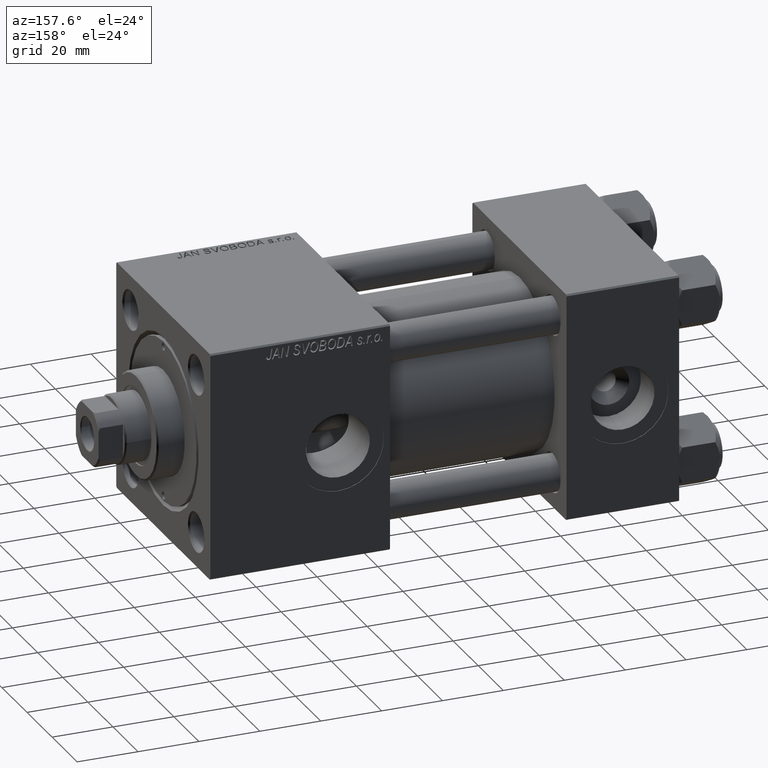
[diagram: clean part render]
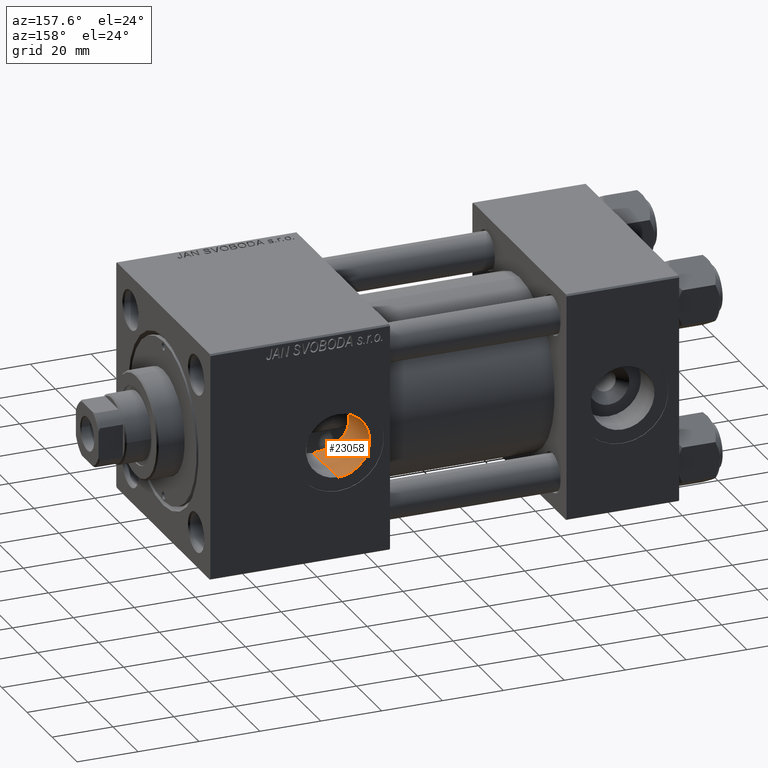
[diagram: same view with one face highlighted and labeled with its STEP entity id]
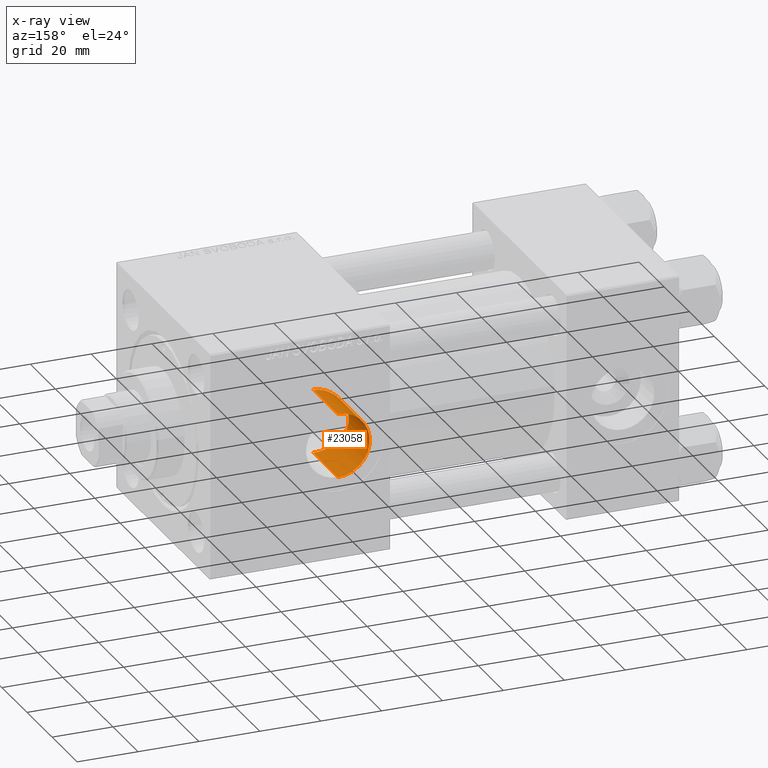
[diagram: x-ray of the same camera — body ghosted, the highlighted face saturated]
A machine part, auxiliary view. The second image highlights one B-rep face of the part: STEP entity #23058.
The next image is the same camera in x-ray: the body ghosted, the highlighted face saturated — about 0% of this face is hidden behind the body in this view.
In plain terms, the highlighted cylindrical surface (edge-blend (fillet) strip) has radius 10.48 mm, axis along (0, 1, 0).
Its self-contained STEP definition (entity closure, byte-faithful):
#847 = CARTESIAN_POINT ( 'NONE',  ( 101.6055836921181736, 20.45635861796915478, 1.381700106035497422 ) ) ;
#1101 = CARTESIAN_POINT ( 'NONE',  ( 108.5742545404236523, 17.93825126373310752, 9.927655132419886286 ) ) ;
#1584 = DIRECTION ( 'NONE',  ( -0.000000000000000000, 1.000000000000000000, -0.000000000000000000 ) ) ;
#2121 = ORIENTED_EDGE ( 'NONE', *, *, #31659, .F. ) ;
#2296 = CIRCLE ( 'NONE', #29098, 10.48000000000000043 ) ;
#2851 = EDGE_CURVE ( 'NONE', #4493, #47593, #47347, .T. ) ;
#4428 = CARTESIAN_POINT ( 'NONE',  ( 106.7106607938319485, 18.38789166138563047, 9.072389502815479290 ) ) ;
#4493 = VERTEX_POINT ( 'NONE', #46628 ) ;
#4663 = CARTESIAN_POINT ( 'NONE',  ( 106.7142621541631655, 18.38683988840735850, -9.074526565632755393 ) ) ;
#4912 = CARTESIAN_POINT ( 'NONE',  ( 102.6159976981734445, 19.96142404198110043, -4.678403179177069049 ) ) ;
#5162 = CARTESIAN_POINT ( 'NONE',  ( 112.0000000000000142, 17.61872867150180966, 10.48000000000000043 ) ) ;
#5399 = LINE ( 'NONE', #20935, #36522 ) ;
#5958 = DIRECTION ( 'NONE',  ( -0.000000000000000000, 1.000000000000000000, -0.000000000000000000 ) ) ;
#6362 = DIRECTION ( 'NONE',  ( 0.000000000000000000, 0.000000000000000000, 1.000000000000000000 ) ) ;
#6857 = VERTEX_POINT ( 'NONE', #29451 ) ;
#7972 = CARTESIAN_POINT ( 'NONE',  ( 110.2468534338128734, 17.70251751164530418, 10.33814712602720576 ) ) ;
#8158 = DIRECTION ( 'NONE',  ( -0.000000000000000000, 1.000000000000000000, -0.000000000000000000 ) ) ;
#8236 = CARTESIAN_POINT ( 'NONE',  ( 102.0732622662075784, 20.22142946436213862, -3.428524798860914213 ) ) ;
#8495 = CARTESIAN_POINT ( 'NONE',  ( 101.5365425422142494, 20.49152652918501261, 0.6848675738318643624 ) ) ;
#8729 = CARTESIAN_POINT ( 'NONE',  ( 104.1270451318824257, 19.29675496503547194, 6.925428365915356821 ) ) ;
#8977 = CARTESIAN_POINT ( 'NONE',  ( 111.2952851733683275, 17.62935847065589812, 10.46218947295187185 ) ) ;
#10537 = AXIS2_PLACEMENT_3D ( 'NONE', #48700, #5958, #28869 ) ;
#11337 = VECTOR ( 'NONE', #8158, 1000.000000000000000 ) ;
#11789 = CARTESIAN_POINT ( 'NONE',  ( 101.5203413114016655, 20.49982551501179628, -0.3573665441489103922 ) ) ;
#12039 = CARTESIAN_POINT ( 'NONE',  ( 110.5978533062423708, 17.66157575871127605, -10.40884182910763478 ) ) ;
#12298 = CARTESIAN_POINT ( 'NONE',  ( 107.3100863107396066, 18.22170801969769727, -9.397387316683852632 ) ) ;
#12549 = CARTESIAN_POINT ( 'NONE',  ( 107.3183937461305106, 18.21983983363420379, 9.400884600174675754 ) ) ;
#13316 = CARTESIAN_POINT ( 'NONE',  ( 112.0000000000000000, 37.30000000000000426, 10.48000000000000043 ) ) ;
#13730 = CARTESIAN_POINT ( 'NONE',  ( 112.0000000000000000, 37.30000000000000426, 0.000000000000000000 ) ) ;
#15370 = ORIENTED_EDGE ( 'NONE', *, *, #15664, .T. ) ;
#15664 = EDGE_CURVE ( 'NONE', #47593, #27782, #2296, .T. ) ;
#16364 = CARTESIAN_POINT ( 'NONE',  ( 102.6164643899289786, 19.96120364297752658, 4.679357298666303677 ) ) ;
#16614 = CARTESIAN_POINT ( 'NONE',  ( 102.0672445904021544, 20.22435857088710165, 3.412665908255118286 ) ) ;
#17812 = DIRECTION ( 'NONE',  ( 0.000000000000000000, 1.000000000000000000, 0.000000000000000000 ) ) ;
#19954 = CARTESIAN_POINT ( 'NONE',  ( 102.4668488264915567, 20.03214750572677261, 4.366727419945055644 ) ) ;
#20194 = CARTESIAN_POINT ( 'NONE',  ( 103.1187049359718202, 19.72987673710759537, -5.573899943951358793 ) ) ;
#20935 = CARTESIAN_POINT ( 'NONE',  ( 112.0000000000000000, -29.64191626734007912, 10.48000000000000043 ) ) ;
#23058 = ADVANCED_FACE ( 'NONE', ( #25048 ), #29617, .F. ) ;
#23125 = EDGE_CURVE ( 'NONE', #6857, #27782, #5399, .T. ) ;
#23507 = CARTESIAN_POINT ( 'NONE',  ( 101.5378897624987928, 20.49083823246028047, -0.7039849273505848215 ) ) ;
#23769 = CARTESIAN_POINT ( 'NONE',  ( 104.3565930781032733, 19.20397725512305342, 7.177934301078940038 ) ) ;
#24017 = CARTESIAN_POINT ( 'NONE',  ( 109.2403629802350196, 17.82079794539907525, -10.13382489948089038 ) ) ;
#24253 = CARTESIAN_POINT ( 'NONE',  ( 101.5196685255906885, 20.50016945612666319, 0.3370597319416051008 ) ) ;
#24330 = CARTESIAN_POINT ( 'NONE',  ( 112.0000000000000000, 37.30000000000000426, -10.48000000000000043 ) ) ;
#24509 = CARTESIAN_POINT ( 'NONE',  ( 103.1169022577859806, 19.73069551859685333, 5.570939784232588288 ) ) ;
#25048 = FACE_OUTER_BOUND ( 'NONE', #29556, .T. ) ;
#27312 = CARTESIAN_POINT ( 'NONE',  ( 105.5912950391798688, 18.74056962282067929, 8.319486838373059356 ) ) ;
#27782 = VERTEX_POINT ( 'NONE', #13316 ) ;
#27826 = CARTESIAN_POINT ( 'NONE',  ( 104.1154966428195650, 19.29748815725751854, -6.936615267079071501 ) ) ;
#28074 = CARTESIAN_POINT ( 'NONE',  ( 109.2268287562162783, 17.82285308859523454, 10.13022984834618434 ) ) ;
#28310 = CARTESIAN_POINT ( 'NONE',  ( 101.6580920811483111, 20.42966293947405987, 1.731009894797393089 ) ) ;
#28869 = DIRECTION ( 'NONE',  ( 0.000000000000000000, 0.000000000000000000, 1.000000000000000000 ) ) ;
#29098 = AXIS2_PLACEMENT_3D ( 'NONE', #13730, #17812, #6362 ) ;
#29451 = CARTESIAN_POINT ( 'NONE',  ( 112.0000000000000142, 17.61872867150180966, 10.48000000000000043 ) ) ;
#29556 = EDGE_LOOP ( 'NONE', ( #2121, #39340, #15370, #34986 ) ) ;
#29617 = CYLINDRICAL_SURFACE ( 'NONE', #10537, 10.48000000000000043 ) ;
#31659 = EDGE_CURVE ( 'NONE', #4493, #6857, #49508, .T. ) ;
#31887 = CARTESIAN_POINT ( 'NONE',  ( 102.9411611326308389, 19.81064037218146368, 5.280583646633655981 ) ) ;
#32127 = CARTESIAN_POINT ( 'NONE',  ( 112.0000000000000000, 17.61872867150181321, -10.48000000000000043 ) ) ;
#34986 = ORIENTED_EDGE ( 'NONE', *, *, #23125, .F. ) ;
#35193 = CARTESIAN_POINT ( 'NONE',  ( 108.5822330272395391, 17.93645683579941164, -9.931014435212070168 ) ) ;
#35443 = CARTESIAN_POINT ( 'NONE',  ( 102.4690137959665606, 20.03112378046086306, -4.371135786211568508 ) ) ;
#35687 = CARTESIAN_POINT ( 'NONE',  ( 105.5937765529685208, 18.73970531679492524, -8.321439665826497745 ) ) ;
#35935 = CARTESIAN_POINT ( 'NONE',  ( 103.6965545704568967, 19.47635848475286835, 6.402950132980990361 ) ) ;
#36522 = VECTOR ( 'NONE', #1584, 1000.000000000000000 ) ;
#39272 = CARTESIAN_POINT ( 'NONE',  ( 101.6075773779828779, 20.45534523790399462, -1.396029170523088059 ) ) ;
#39340 = ORIENTED_EDGE ( 'NONE', *, *, #2851, .T. ) ;
#39511 = CARTESIAN_POINT ( 'NONE',  ( 101.8644662194579240, 20.32571077946739280, 2.754192007661706576 ) ) ;
#39748 = CARTESIAN_POINT ( 'NONE',  ( 105.0734470520781372, 18.92624177978035149, 7.893624330866854777 ) ) ;
#40004 = CARTESIAN_POINT ( 'NONE',  ( 111.6475434304268646, 17.61872867150182742, 10.48000000000000043 ) ) ;
#42830 = CARTESIAN_POINT ( 'NONE',  ( 105.0660515160926849, 18.92900677710231250, -7.886848735419206946 ) ) ;
#43016 = CARTESIAN_POINT ( 'NONE',  ( 112.0000000000000000, -29.64191626734007912, -10.48000000000000043 ) ) ;
#43352 = CARTESIAN_POINT ( 'NONE',  ( 102.9403831427403446, 19.81099715267854577, -5.279232700618297081 ) ) ;
#43590 = CARTESIAN_POINT ( 'NONE',  ( 101.6599816702482002, 20.42870407917522257, -1.742736129997704886 ) ) ;
#43826 = CARTESIAN_POINT ( 'NONE',  ( 110.5956288187404510, 17.67116055936238439, 10.39142786820305631 ) ) ;
#46628 = CARTESIAN_POINT ( 'NONE',  ( 112.0000000000000000, 17.61872867150181321, -10.48000000000000043 ) ) ;
#46661 = CARTESIAN_POINT ( 'NONE',  ( 103.6880334401415666, 19.47800103400543037, -6.418961154723162643 ) ) ;
#47158 = CARTESIAN_POINT ( 'NONE',  ( 111.3055401115030350, 17.61872867150182032, -10.48000000000000043 ) ) ;
#47347 = LINE ( 'NONE', #43016, #11337 ) ;
#47415 = CARTESIAN_POINT ( 'NONE',  ( 101.8691597652190524, 20.32336116498156997, -2.772599727864801800 ) ) ;
#47593 = VERTEX_POINT ( 'NONE', #24330 ) ;
#47651 = CARTESIAN_POINT ( 'NONE',  ( 103.4945987102145324, 19.56355722383162643, 6.132123977627048639 ) ) ;
#48700 = CARTESIAN_POINT ( 'NONE',  ( 112.0000000000000000, -29.64191626734007912, 0.000000000000000000 ) ) ;
#49508 = B_SPLINE_CURVE_WITH_KNOTS ( 'NONE', 3,
 ( #32127, #47158, #12039, #24017, #35193, #12298, #4663, #35687, #42830, #27826, #46661, #20194, #43352, #4912, #35443, #8236, #47415, #43590, #39272, #23507, #11789, #24253, #8495, #847, #28310, #39511, #16614, #19954, #16364, #31887, #24509, #47651, #35935, #8729, #23769, #39748, #27312, #4428, #12549, #1101, #28074, #7972, #43826, #8977, #40004, #5162 ),
 .UNSPECIFIED., .F., .F.,
 ( 4, 2, 2, 2, 2, 2, 2, 2, 2, 2, 2, 2, 2, 2, 2, 2, 2, 2, 2, 2, 2, 2, 4 ),
 ( 0.03336158123516717866, 0.03544265961690356431, 0.03752373799863994996, 0.03960481638037632868, 0.04168589476211271433, 0.04376697314384909998, 0.04480751233471730322, 0.04584805152558550645, 0.04792912990732189904, 0.04896966909819009534, 0.05001020828905829163, 0.05105074747992649487, 0.05209128667079469810, 0.05417236505253109069, 0.05521290424339927311, 0.05625344343426746246, 0.05729398262513565182, 0.05833452181600384118, 0.06041560019774022683, 0.06249667857947660554, 0.06457775696121298425, 0.06561829615208117361, 0.06665883534294933521 ),
 .UNSPECIFIED. ) ;